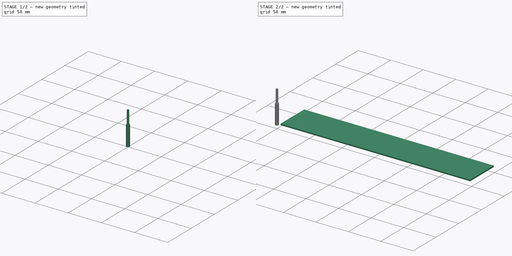
[diagram: build sequence overview — one tinted view per stage of 2, left to right]
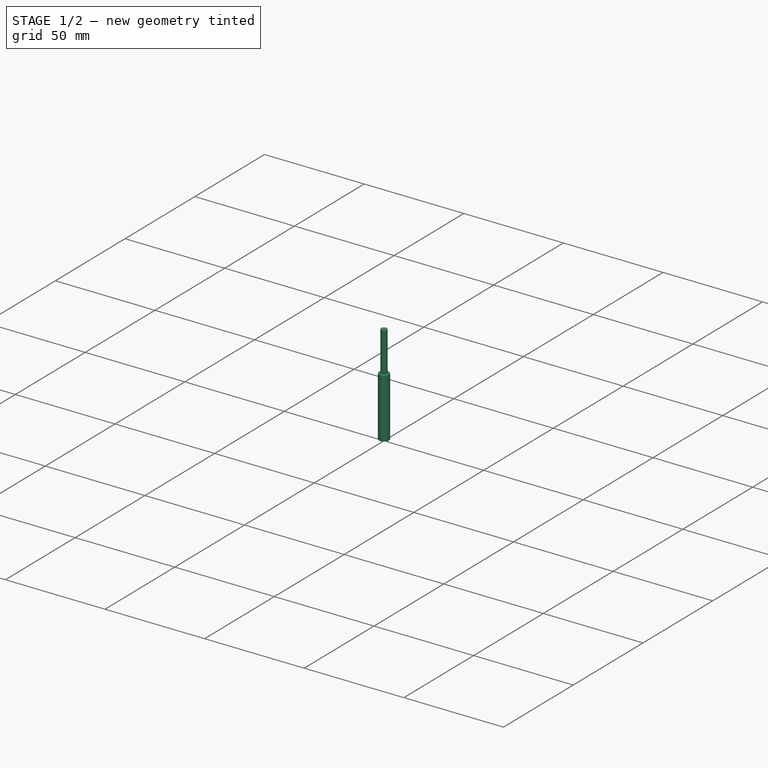
[diagram: stage 1 of 2 — iso view after this stage's code; geometry added in this stage tinted green]
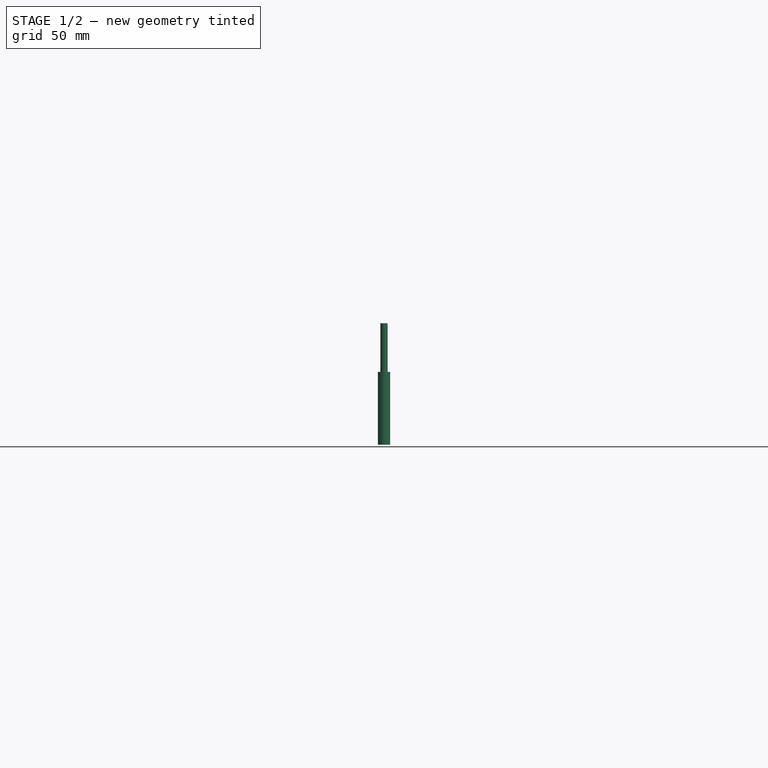
[diagram: stage 1 of 2 — front view after this stage's code; geometry added in this stage tinted green]
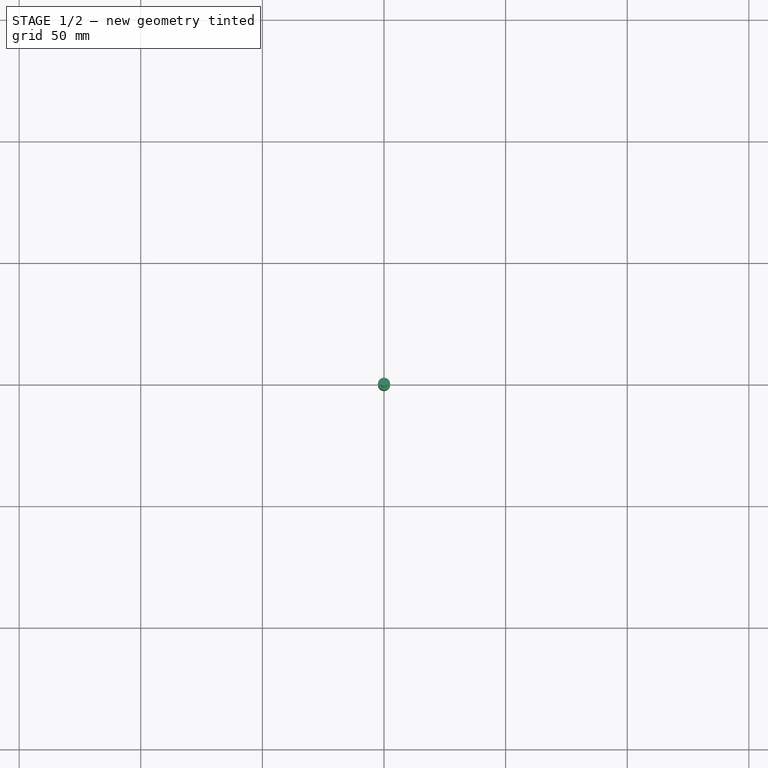
[diagram: stage 1 of 2 — top view after this stage's code; geometry added in this stage tinted green]
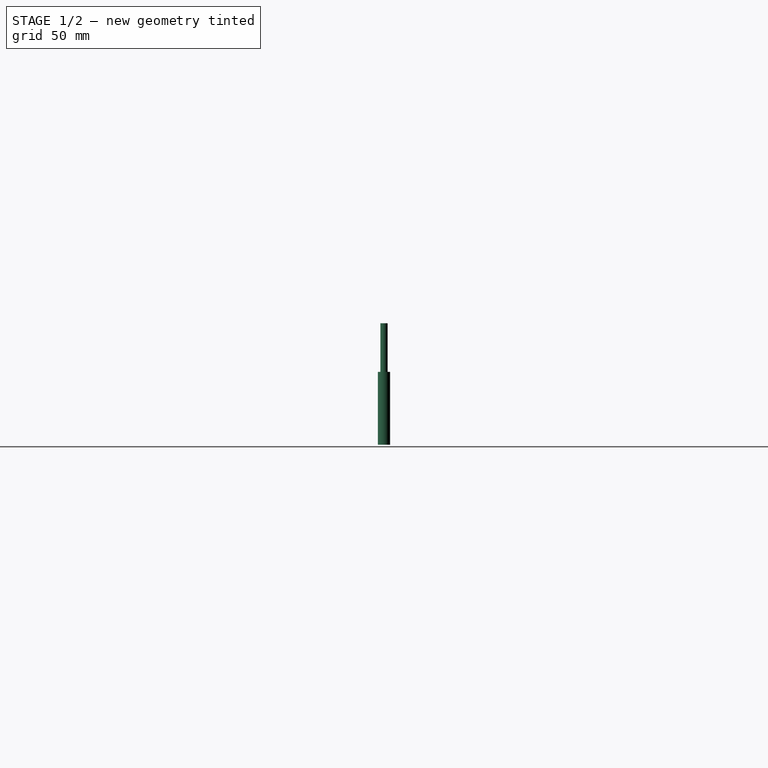
[diagram: stage 1 of 2 — right view after this stage's code; geometry added in this stage tinted green]
FCSTD DOCUMENT  (FreeCAD 0.20R29177 (Git))
Label: DolphinBar
License: All rights reserved
LicenseURL: http://en.wikipedia.org/wiki/All_rights_reserved
objects: Part::Part2DObjectPython×6, Sketcher::SketchObject×4, App::DocumentObjectGroup×3, Path::FeaturePython×3, Part::FeaturePython×2, App::FeaturePython×1
note: 12 computed .brp shape members not serialized (recipe doc carries the construction recipe); baked Part::Feature solids carry a one-line shape summary decoded from their .brp

FEATURE [Sketcher::SketchObject] Sketch  label="A4"
  FullyConstrained = true
  MapMode = 5
  Support = -> [XY_Plane]
  sketch-geometry (4):
    g0: LineSegment StartX=0 StartY=0 StartZ=0 EndX=297 EndY=0 EndZ=0
    g1: LineSegment StartX=297 StartY=0 StartZ=0 EndX=297 EndY=210 EndZ=0
    g2: LineSegment StartX=297 StartY=210 StartZ=0 EndX=0 EndY=210 EndZ=0
    g3: LineSegment StartX=0 StartY=210 StartZ=0 EndX=0 EndY=0 EndZ=0
  constraints (11):
    c: Coincident(g0,g1)
    c: Coincident(g1,g2)
    c: Coincident(g2,g3)
    c: Coincident(g3,g0)
    c: Horizontal(g0)
    c: Horizontal(g2)
    c: Vertical(g1)
    c: Vertical(g3)
    c: Coincident(g0,g-1)
    c: DistanceX(g0,g0) = 297
    c: DistanceY(g3,g3) = 210
FEATURE [Sketcher::SketchObject] Sketch002  label="window"
  ExternalGeometry = -> [Sketch]
  FullyConstrained = false
  MapMode = 5
  Support = -> [XY_Plane001]
  sketch-geometry (20):
    g0: LineSegment StartX=0 StartY=50 StartZ=0 EndX=148.5 EndY=50 EndZ=0
    g1: LineSegment StartX=148.5 StartY=50 StartZ=0 EndX=297 EndY=50 EndZ=0
    g2: LineSegment StartX=148.5 StartY=50 StartZ=0 EndX=148.5 EndY=35 EndZ=0
    g3: LineSegment StartX=148.5 StartY=35 StartZ=0 EndX=32.6772 EndY=35 EndZ=0
    g4: LineSegment StartX=29.0905 StartY=31.4133 StartZ=0 EndX=29.0905 EndY=29.245 EndZ=0
    g5: LineSegment StartX=31.3354 StartY=27 StartZ=0 EndX=266.845 EndY=27 EndZ=0
    g6: LineSegment StartX=269.09 StartY=29.245 StartZ=0 EndX=269.09 EndY=32.4311 EndZ=0
    g7: LineSegment StartX=266.522 StartY=35 StartZ=0 EndX=148.5 EndY=35 EndZ=0
    g8: ArcOfCircle CenterX=32.6772 CenterY=31.4133 CenterZ=0 NormalX=0 NormalY=0 NormalZ=1 AngleXU=0 Radius=3.58669 StartAngle=1.5708 EndAngle=3.14159
    g9: GeomPoint X=29.0905 Y=35 Z=0
    g10: ArcOfCircle CenterX=31.3354 CenterY=29.245 CenterZ=0 NormalX=0 NormalY=0 NormalZ=1 AngleXU=0 Radius=2.24498 StartAngle=3.14159 EndAngle=4.71239
    g11: GeomPoint X=29.0905 Y=27 Z=0
    g12: ArcOfCircle CenterX=266.522 CenterY=32.4311 CenterZ=0 NormalX=0 NormalY=0 NormalZ=1 AngleXU=0 Radius=2.56892 StartAngle=-9e-16 EndAngle=1.5708
    g13: GeomPoint X=269.09 Y=35 Z=0
    g14: ArcOfCircle CenterX=266.845 CenterY=29.245 CenterZ=0 NormalX=0 NormalY=0 NormalZ=1 AngleXU=0 Radius=2.24498 StartAngle=4.71239 EndAngle=6.28319
    g15: GeomPoint X=269.09 Y=27 Z=0
    g16: ArcOfCircle CenterX=29.0905 CenterY=29.245 CenterZ=0 NormalX=0 NormalY=0 NormalZ=1 AngleXU=0 Radius=25 StartAngle=1.5708 EndAngle=4.71239
    g17: ArcOfCircle CenterX=269.09 CenterY=29.245 CenterZ=0 NormalX=0 NormalY=0 NormalZ=1 AngleXU=0 Radius=25 StartAngle=4.71239 EndAngle=7.85398
    g18: LineSegment StartX=29.0905 StartY=4.24498 StartZ=0 EndX=269.09 EndY=4.24498 EndZ=0
    g19: LineSegment StartX=269.09 StartY=54.245 StartZ=0 EndX=29.0905 EndY=54.245 EndZ=0
  constraints (44):
    c: PointOnObject(g0,g-2)
    c: Horizontal(g0)
    c: Coincident(g1,g0)
    c: PointOnObject(g1,g-3)
    c: Horizontal(g1)
    c: Equal(g1,g0)
    c: Coincident(g2,g0)
    c: Vertical(g2)
    c: Coincident(g3,g2)
    c: Horizontal(g3)
    c: Vertical(g4)
    c: Horizontal(g5)
    c: Vertical(g6)
    c: Coincident(g7,g2)
    c: Horizontal(g7)
    c: DistanceY(g15,g13) = 8
    c: DistanceY(g-1,g0) = 50
    c: DistanceY(g2,g2) = 15
    c: PointOnObject(g9,g4)
    c: PointOnObject(g9,g3)
    c: Tangent(g4,g8) = -1.5708
    c: Tangent(g3,g8) = -1.5708
    c: PointOnObject(g11,g4)
    c: PointOnObject(g11,g5)
    c: Tangent(g4,g10) = -1.5708
    c: Tangent(g5,g10) = -1.5708
    c: PointOnObject(g13,g6)
    c: PointOnObject(g13,g7)
    c: Tangent(g6,g12) = -1.5708
    c: Tangent(g7,g12) = -1.5708
    c: PointOnObject(g15,g5)
    c: PointOnObject(g15,g6)
    c: Tangent(g5,g14) = -1.5708
    c: Tangent(g6,g14) = -1.5708
    c: Tangent(g16,g18) = -1.5708
    c: Tangent(g18,g17) = -1.5708
    c: Tangent(g17,g19) = -1.5708
    c: Tangent(g19,g16) = -1.5708
    c: Equal(g16,g17)
    c: Horizontal(g18)
    c: Diameter(g17) = 50
    c: Coincident(g17,g6)
    c: Coincident(g16,g4)
    c: DistanceX(g4,g6) = 240
FEATURE [Part::Part2DObjectPython] ShapeString  label="ABXY"  # Draft 2D object (typed FeaturePython)
  FontFile = <userpath>/Documents/Projects_DIY/LaserFonts/Karla_BoldStencil.ttf
  MakeFace = true
  Placement = pos=(40,15,0) rot=(0,0,1;0rad)
  Size = 5
  String = A B X Y
  Tracking = 0
FEATURE [Part::Part2DObjectPython] ShapeString001  label="ABCD"  # Draft 2D object (typed FeaturePython)
  FontFile = <userpath>/Documents/Projects_DIY/LaserFonts/Karla_BoldStencil.ttf
  MakeFace = true
  Placement = pos=(120,15,0) rot=(0,0,1;0rad)
  Size = 5
  String = A B  C D
  Tracking = 0
FEATURE [Sketcher::SketchObject] Sketch003  label="A005"
  FullyConstrained = true
  MapMode = 5
  Support = -> [XY_Plane002]
  sketch-geometry (4):
    g0: LineSegment StartX=0 StartY=0 StartZ=0 EndX=297 EndY=0 EndZ=0
    g1: LineSegment StartX=297 StartY=0 StartZ=0 EndX=297 EndY=210 EndZ=0
    g2: LineSegment StartX=297 StartY=210 StartZ=0 EndX=0 EndY=210 EndZ=0
    g3: LineSegment StartX=0 StartY=210 StartZ=0 EndX=0 EndY=0 EndZ=0
  constraints (11):
    c: Coincident(g0,g1)
    c: Coincident(g1,g2)
    c: Coincident(g2,g3)
    c: Coincident(g3,g0)
    c: Horizontal(g0)
    c: Horizontal(g2)
    c: Vertical(g1)
    c: Vertical(g3)
    c: Coincident(g0,g-1)
    c: DistanceX(g0,g0) = 297
    c: DistanceY(g3,g3) = 210
FEATURE [Sketcher::SketchObject] Sketch004  label="psp_symbols"
  ExternalGeometry = -> [Sketch003]
  FullyConstrained = false
  MapMode = 5
  Support = -> [XY_Plane003]
  sketch-geometry (19):
    g0: LineSegment StartX=242.301 StartY=15.716 StartZ=0 EndX=242.301 EndY=22.7871 EndZ=0
    g1: LineSegment StartX=242.301 StartY=22.7871 StartZ=0 EndX=235.23 EndY=22.7871 EndZ=0
    g2: LineSegment StartX=235.23 StartY=22.7871 StartZ=0 EndX=235.23 EndY=15.716 EndZ=0
    g3: LineSegment StartX=235.23 StartY=15.716 StartZ=0 EndX=242.301 EndY=15.716 EndZ=0
    g4: Circle CenterX=238.765 CenterY=19.2516 CenterZ=0 NormalX=0 NormalY=0 NormalZ=1 AngleXU=0 Radius=5
    g5: LineSegment StartX=228.932 StartY=23.1726 StartZ=0 EndX=224.602 EndY=15.6726 EndZ=0
    g6: LineSegment StartX=224.602 StartY=15.6726 StartZ=0 EndX=233.263 EndY=15.6726 EndZ=0
    g7: LineSegment StartX=233.263 StartY=15.6726 StartZ=0 EndX=228.932 EndY=23.1726 EndZ=0
    g8: Circle CenterX=228.932 CenterY=18.1726 CenterZ=0 NormalX=0 NormalY=0 NormalZ=1 AngleXU=0 Radius=5
    g9: Circle CenterX=205.812 CenterY=19.3602 CenterZ=0 NormalX=0 NormalY=0 NormalZ=1 AngleXU=0 Radius=4
    g10: Circle CenterX=217.151 CenterY=19.0014 CenterZ=0 NormalX=0 NormalY=0 NormalZ=1 AngleXU=0 Radius=5
    g11: LineSegment StartX=213.043 StartY=16.1516 StartZ=0 EndX=219.366 EndY=23.4839 EndZ=0
    g12: LineSegment StartX=219.366 StartY=23.4839 StartZ=0 EndX=221.26 EndY=21.8512 EndZ=0
    g13: LineSegment StartX=221.26 StartY=21.8512 StartZ=0 EndX=214.936 EndY=14.5189 EndZ=0
    g14: LineSegment StartX=214.936 StartY=14.5189 StartZ=0 EndX=213.043 EndY=16.1516 EndZ=0
    g15: LineSegment StartX=212.669 StartY=21.2166 StartZ=0 EndX=214.301 EndY=23.1098 EndZ=0
    g16: LineSegment StartX=214.301 StartY=23.1098 StartZ=0 EndX=221.634 EndY=16.7863 EndZ=0
    g17: LineSegment StartX=221.634 StartY=16.7863 StartZ=0 EndX=220.001 EndY=14.8931 EndZ=0
    g18: LineSegment StartX=220.001 StartY=14.8931 StartZ=0 EndX=212.669 EndY=21.2166 EndZ=0
  constraints (48):
    c: Coincident(g0,g1)
    c: Coincident(g1,g2)
    c: Coincident(g2,g3)
    c: Coincident(g3,g0)
    c: Equal(g0,g1)
    c: Equal(g0,g2)
    c: Equal(g0,g3)
    c: PointOnObject(g0,g4)
    c: PointOnObject(g1,g4)
    c: PointOnObject(g2,g4)
    c: PointOnObject(g3,g4)
    c: Coincident(g5,g6)
    c: Coincident(g6,g7)
    c: Coincident(g7,g5)
    c: Equal(g5,g6)
    c: Equal(g5,g7)
    c: PointOnObject(g5,g8)
    c: PointOnObject(g6,g8)
    c: PointOnObject(g7,g8)
    c: Diameter(g8) = 10
    c: Horizontal(g6)
    c: Horizontal(g3)
    c: Equal(g4,g8)
    c: Diameter(g9) = 8
    c: Equal(g4,g10)
    c: Coincident(g11,g12)
    c: Coincident(g12,g13)
    c: Coincident(g13,g14)
    c: Coincident(g14,g11)
    c: Parallel(g11,g13)
    c: Parallel(g12,g14)
    c: PointOnObject(g11,g10)
    c: PointOnObject(g12,g10)
    c: Coincident(g15,g16)
    c: Coincident(g16,g17)
    c: Coincident(g17,g18)
    c: Coincident(g18,g15)
    c: Parallel(g11,g15)
    c: Parallel(g11,g17)
    c: Parallel(g12,g16)
    c: Parallel(g12,g18)
    c: PointOnObject(g15,g10)
    c: PointOnObject(g16,g10)
    c: PointOnObject(g15,g10)
    c: PointOnObject(g11,g10)
    c: Equal(g17,g12)
    c: Distance(g12,g12) = 2.5
    c: Perpendicular(g12,g11)
FEATURE [App::FeaturePython] SetupSheet  # Path/CAM operation (typed FeaturePython)
  ClearanceHeightExpression = OpStockZMax+SetupSheet.ClearanceHeightOffset
  ClearanceHeightOffset = 5
  CoolantMode = 0
  CoolantModes = None | Flood | Mist
  FinalDepthExpression = OpFinalDepth
  HorizRapid = 0
  SafeHeightExpression = OpStockZMax+SetupSheet.SafeHeightOffset
  SafeHeightOffset = 3
  StartDepthExpression = OpStartDepth
  StepDownExpression = OpToolDiameter
  VertRapid = 0
FEATURE [Part::Part2DObjectPython] Clone2D  label="Model-ABCD"  # Draft 2D object (typed FeaturePython)
  Fuse = false
  Objects = -> [ShapeString001]
  PathResource = Model
  Placement = pos=(120,15,0) rot=(0,0,1;0rad)
  Scale = (1,1,1)
FEATURE [Part::Part2DObjectPython] Clone2D001  label="Model-ABXY"  # Draft 2D object (typed FeaturePython)
  Fuse = false
  Objects = -> [ShapeString]
  PathResource = Model
  Placement = pos=(40,15,0) rot=(0,0,1;0rad)
  Scale = (1,1,1)
FEATURE [Part::Part2DObjectPython] Clone2D002  label="Model-psp_symbols"  # Draft 2D object (typed FeaturePython)
  Fuse = false
  Objects = -> [Sketch004]
  PathResource = Model
  Scale = (1,1,1)
FEATURE [Part::Part2DObjectPython] Clone2D003  label="Model-window"  # Draft 2D object (typed FeaturePython)
  Fuse = false
  Objects = -> [Sketch002]
  PathResource = Model
  Scale = (1,1,1)
FEATURE [App::DocumentObjectGroup] Model
  Group = -> [Clone2D,Clone2D001,Clone2D002,Clone2D003]
FEATURE [Part::FeaturePython] ToolBit  label="Endmill"  # Path/CAM toolbit (typed FeaturePython)
  BitPropertyNames = Chipload | CuttingEdgeHeight | Diameter | Flutes | Length | Material | ShankDiameter | SpindleDirection
  BitShape = <path> 0.20.0/Mod\Path\Tools\Shape\endmill.fcstd
  Chipload = 0
  CuttingEdgeHeight = 30
  Diameter = 5
  Flutes = 0
  Length = 50
  Material = 0
  ShankDiameter = 3
  ShapeName = endmill
  SpindleDirection = 0
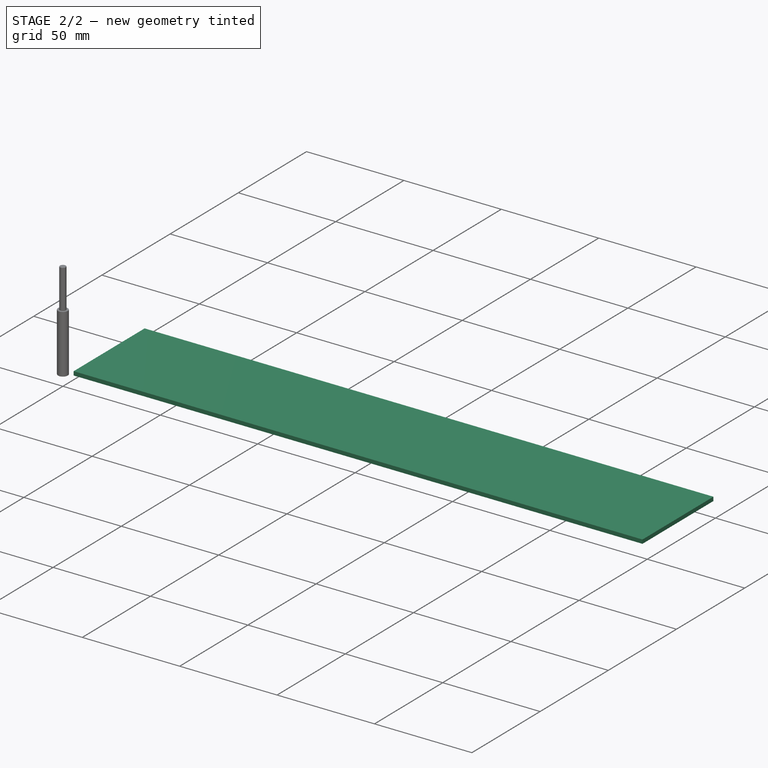
[diagram: stage 2 of 2 — iso view after this stage's code; geometry added in this stage tinted green]
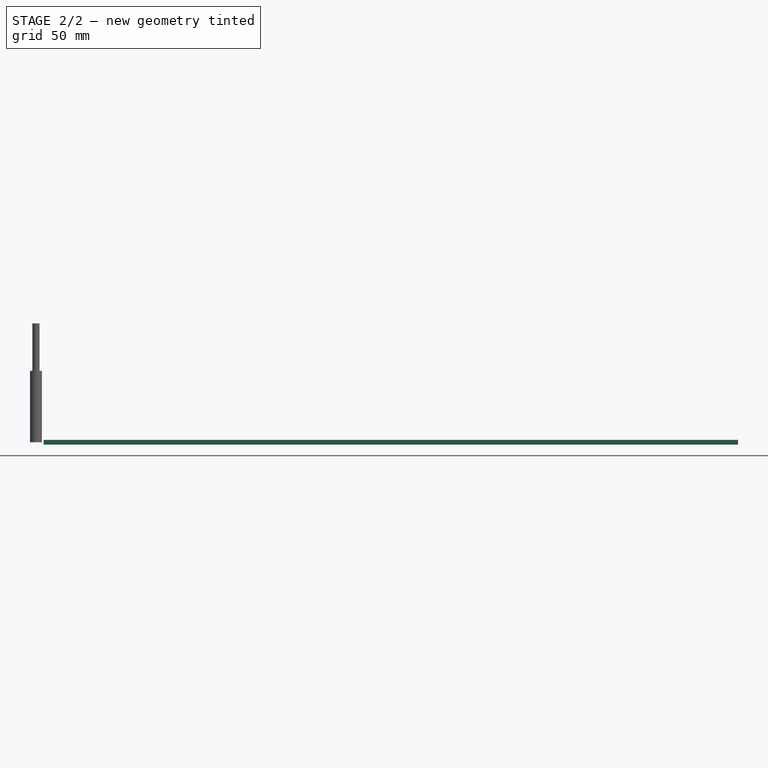
[diagram: stage 2 of 2 — front view after this stage's code; geometry added in this stage tinted green]
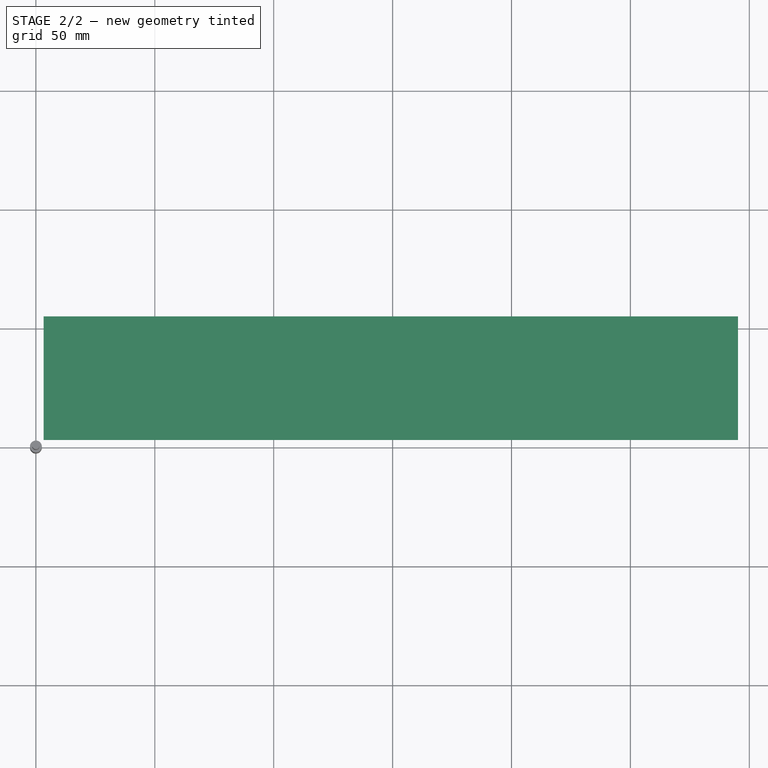
[diagram: stage 2 of 2 — top view after this stage's code; geometry added in this stage tinted green]
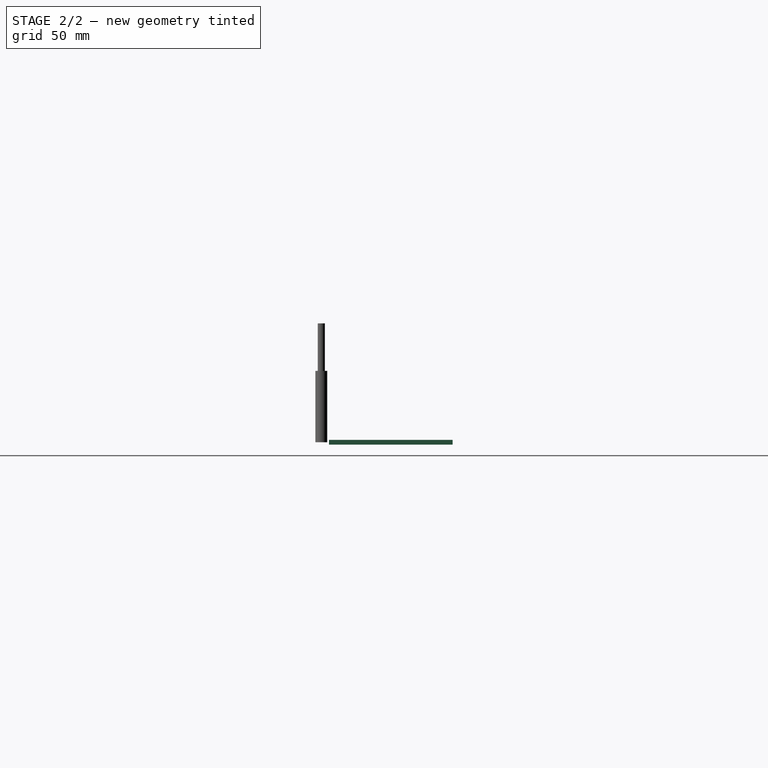
[diagram: stage 2 of 2 — right view after this stage's code; geometry added in this stage tinted green]
FEATURE [Path::FeaturePython] TC__Default_Tool  label="TC: Default Tool"  # Path/CAM operation (typed FeaturePython)
  HorizFeed = 0
  HorizRapid = 0
  SpindleDir = 0
  SpindleSpeed = 0
  Tool = -> ToolBit
  ToolNumber = 1
  VertFeed = 0
  VertRapid = 0
  expr: HorizRapid = SetupSheet.HorizRapid
  expr: VertRapid = SetupSheet.VertRapid
FEATURE [App::DocumentObjectGroup] Tools
  Group = -> [TC__Default_Tool]
FEATURE [Part::FeaturePython] Stock  # WARN: FeaturePython — macro-defined, semantics opaque (R4)
  Base = -> Model
  ExtXneg = 1
  ExtXpos = 1
  ExtYneg = 1
  ExtYpos = 1
  ExtZneg = 1
  ExtZpos = 1
  Placement = pos=(4.27275,4.24498,0) rot=(0,0,1;0rad)
  StockType = FromBase
FEATURE [Path::FeaturePython] Engrave  # Path/CAM operation (typed FeaturePython)
  Active = true
  ClearanceHeight = 6
  CoolantMode = 0
  CycleTime = Cycletime Error
  FinalDepth = -5
  OpFinalDepth = -5
  OpStartDepth = 0
  OpStockZMax = 1
  OpStockZMin = -1
  OpToolDiameter = 5
  SafeHeight = 4
  StartDepth = 0
  StartVertex = 0
  StepDown = 5
  ToolController = -> TC__Default_Tool
  expr: ClearanceHeight = OpStockZMax + SetupSheet.ClearanceHeightOffset
  expr: FinalDepth = OpFinalDepth
  expr: SafeHeight = OpStockZMax + SetupSheet.SafeHeightOffset
  expr: StartDepth = OpStartDepth
  expr: StepDown = OpToolDiameter
FEATURE [App::DocumentObjectGroup] Operations
  Group = -> [Engrave]
FEATURE [Path::FeaturePython] Job  # Path/CAM operation (typed FeaturePython)
  CycleTime = 00:00:00
  Fixtures = G54
  GeometryTolerance = 0.01
  JobType = 0
  Model = -> Model
  Operations = -> Operations
  OrderOutputBy = 0
  PostProcessor = 1
  SetupSheet = -> SetupSheet
  SplitOutput = false
  Stock = -> Stock
  Tools = -> Tools
note: 1 file-system path scrubbed to <path> (originals preserved in the JSON sidecar)
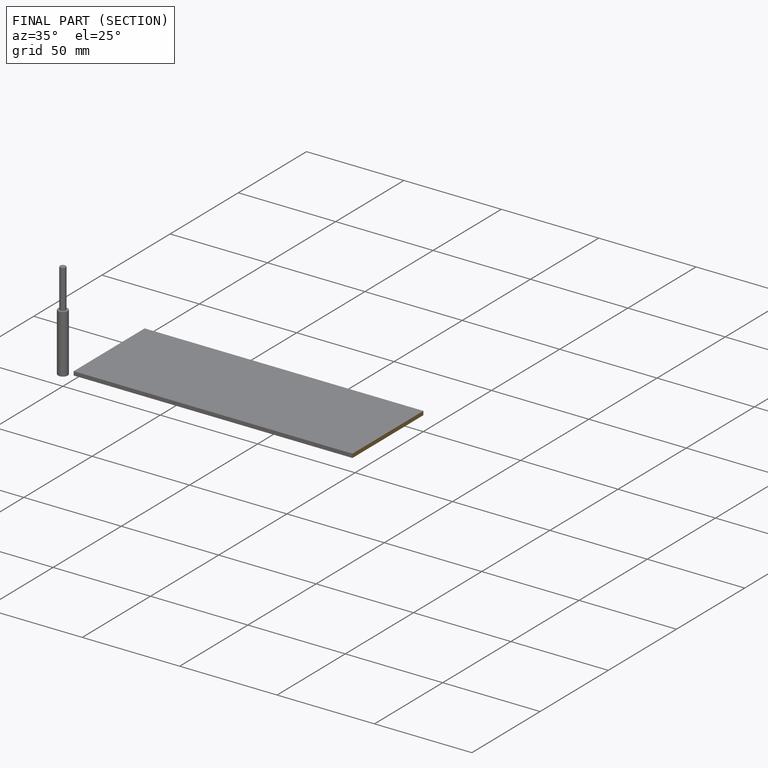
[diagram: finished part — half-section view (interior)]
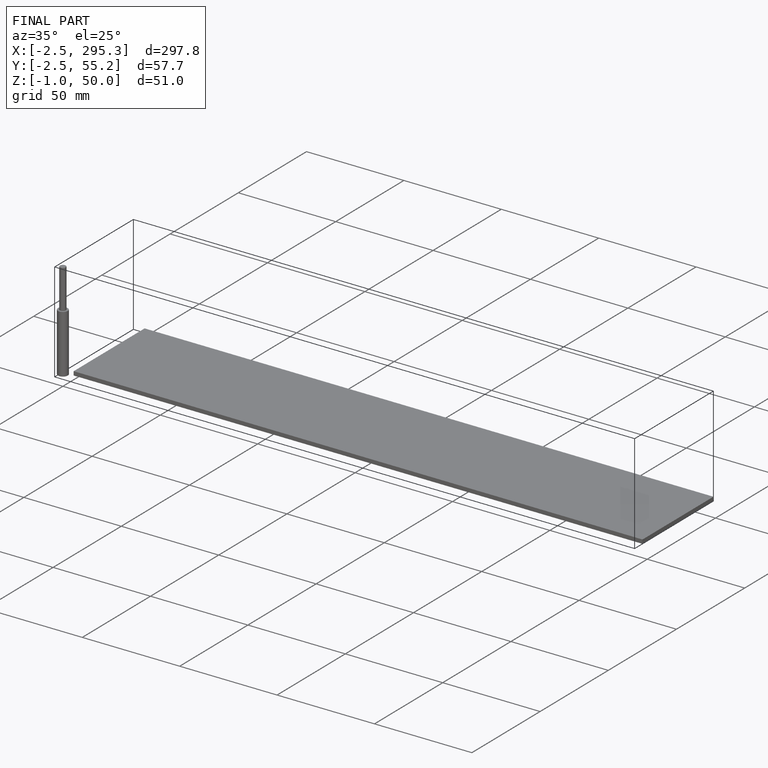
[diagram: finished part — iso view with bounding-box wireframe]
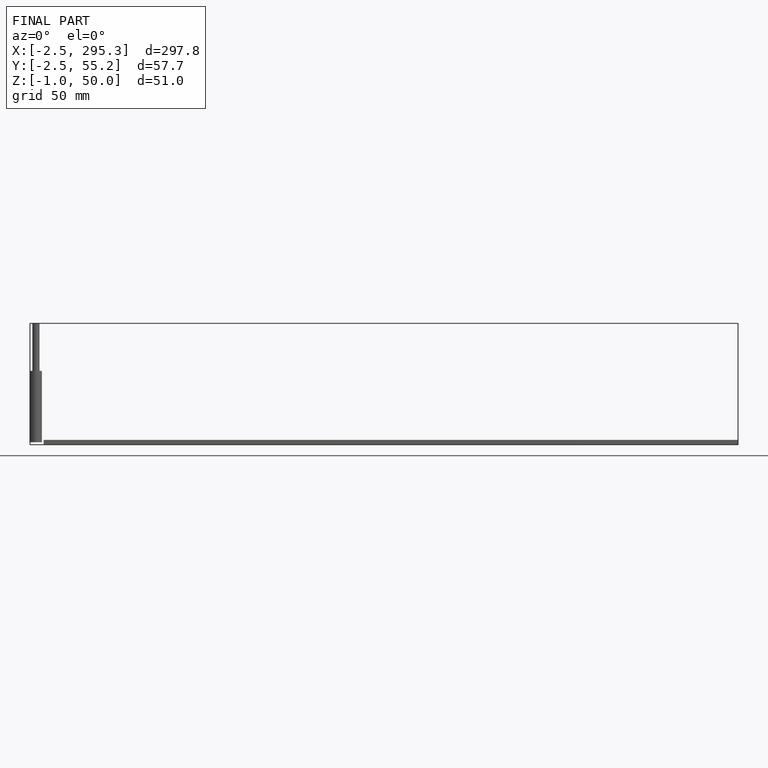
[diagram: finished part — front view with bounding-box wireframe]
